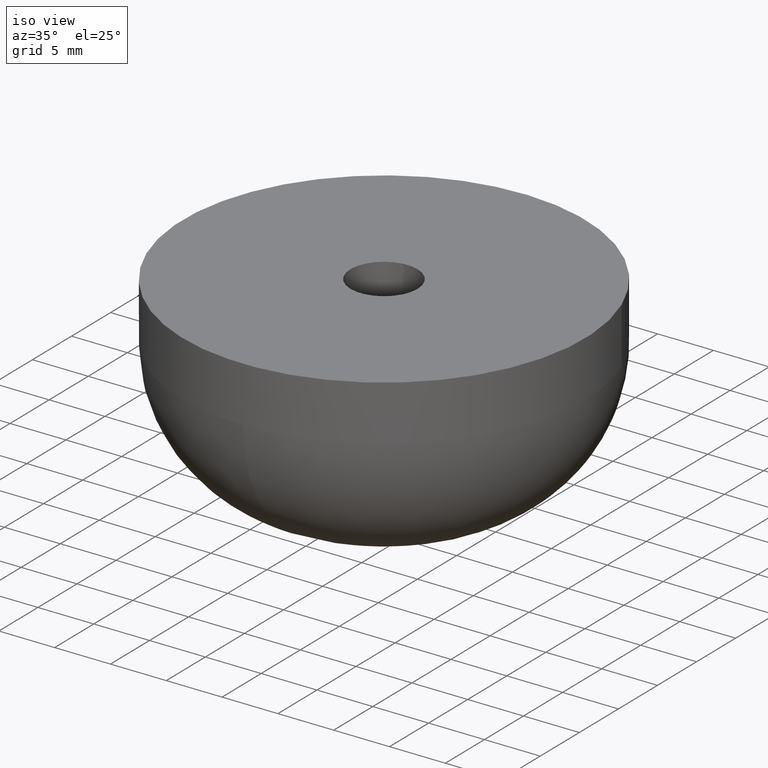
[diagram: clean part render]
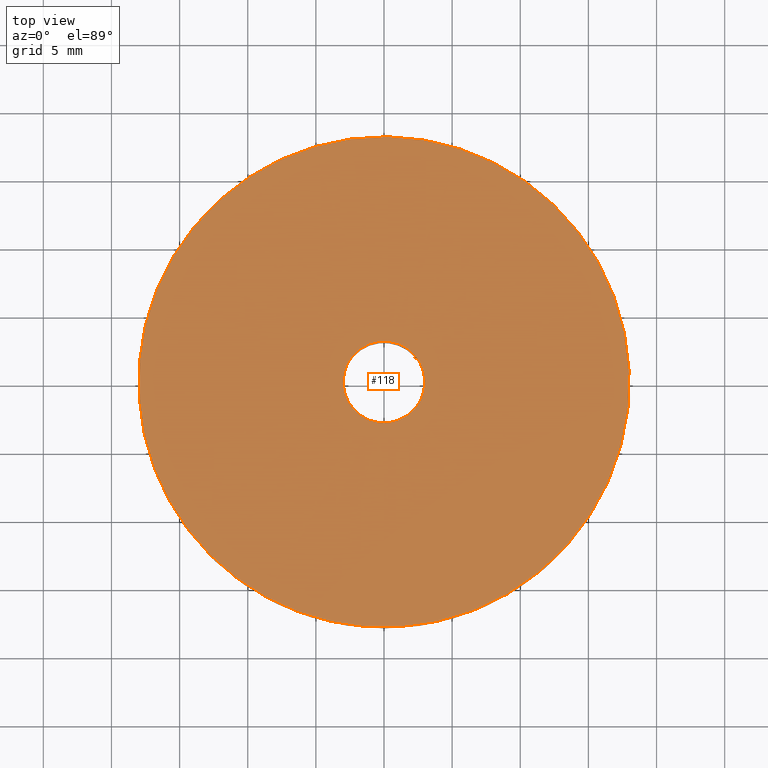
[diagram: tour spotlight — one face highlighted and labeled with its STEP entity id]
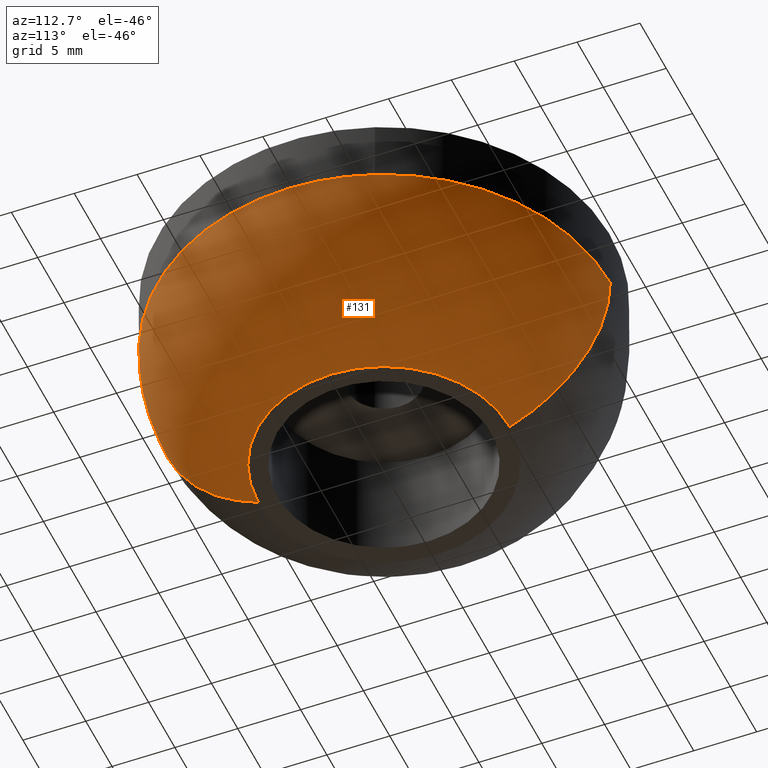
[diagram: tour spotlight — one face highlighted and labeled with its STEP entity id]
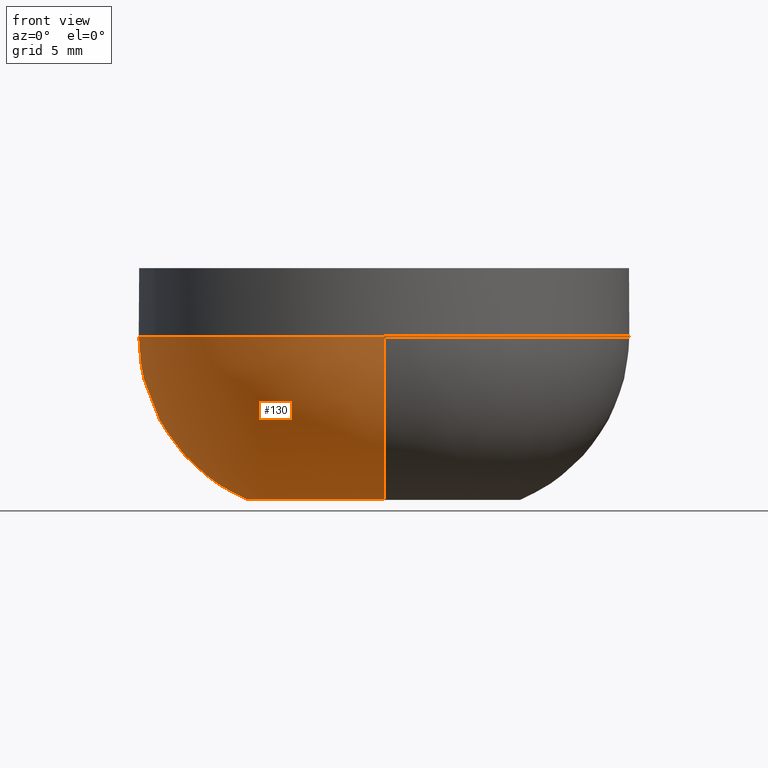
[diagram: tour spotlight — one face highlighted and labeled with its STEP entity id]
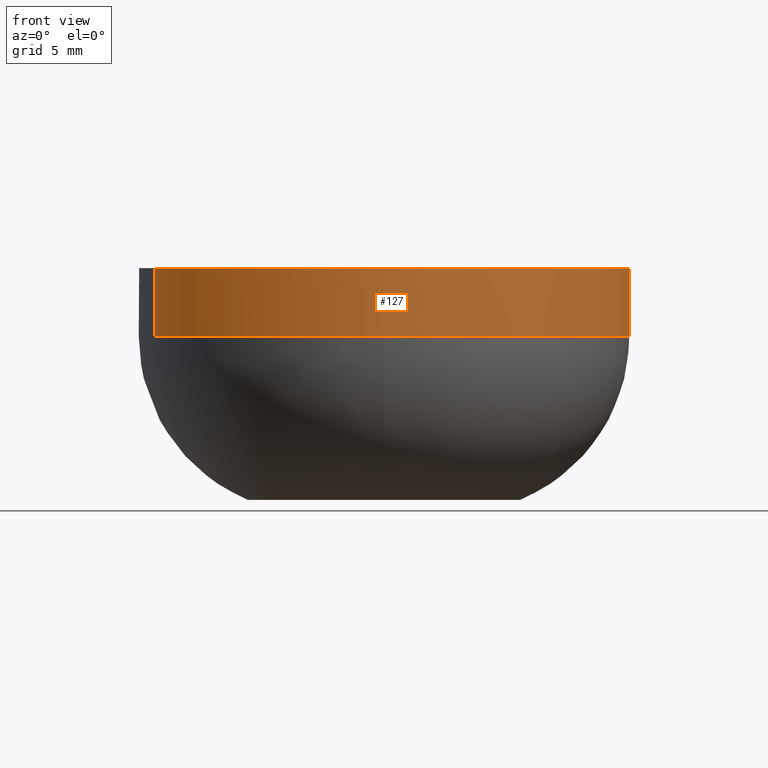
[diagram: tour spotlight — one face highlighted and labeled with its STEP entity id]
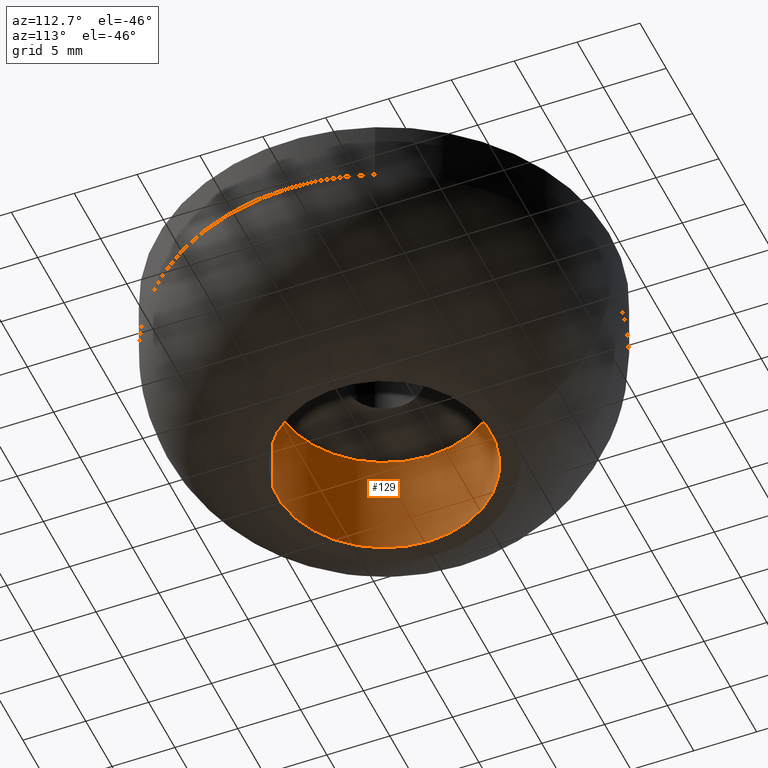
[diagram: tour spotlight — one face highlighted and labeled with its STEP entity id]
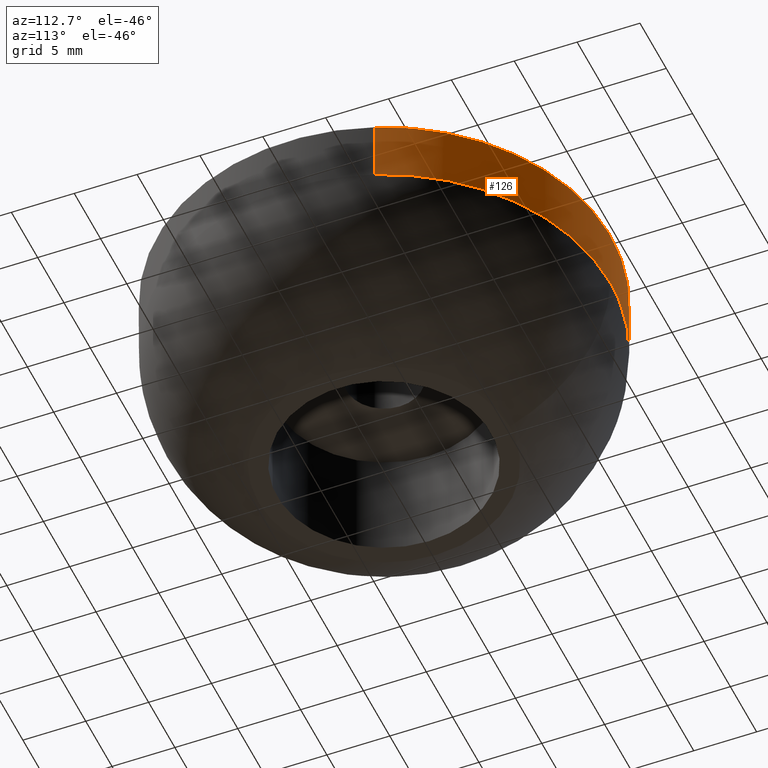
[diagram: tour spotlight — one face highlighted and labeled with its STEP entity id]
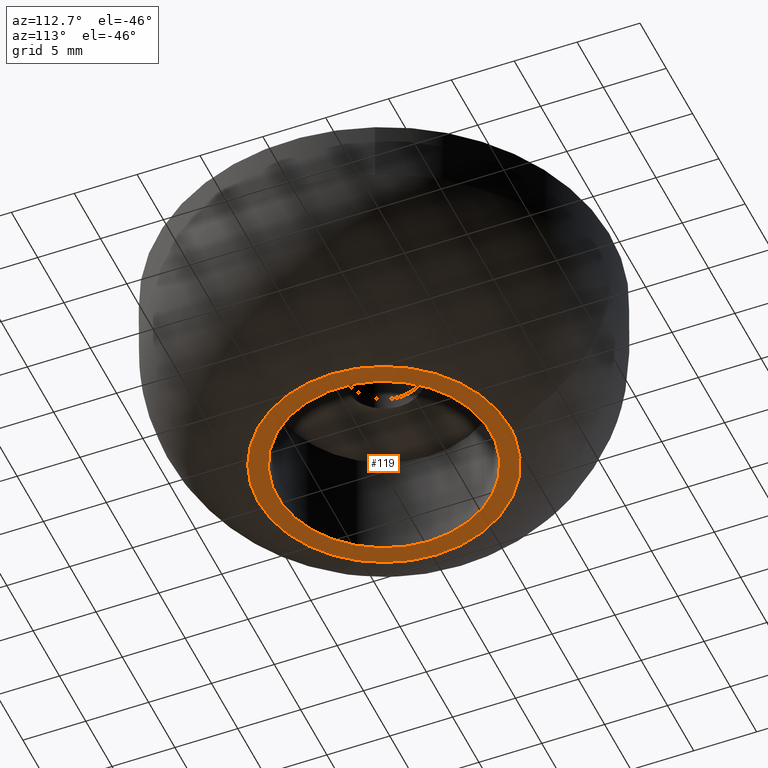
[diagram: tour spotlight — one face highlighted and labeled with its STEP entity id]
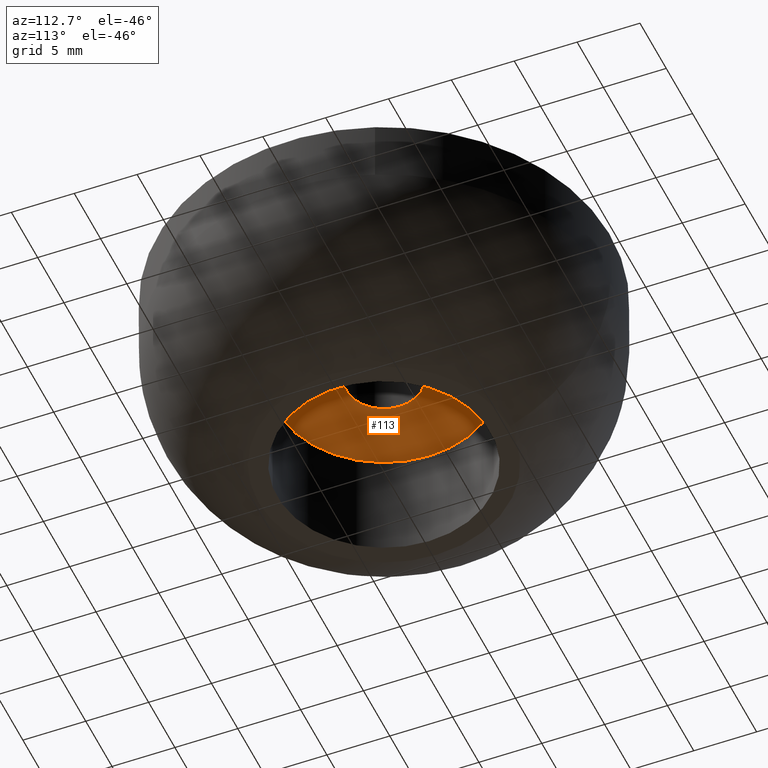
[diagram: tour spotlight — one face highlighted and labeled with its STEP entity id]
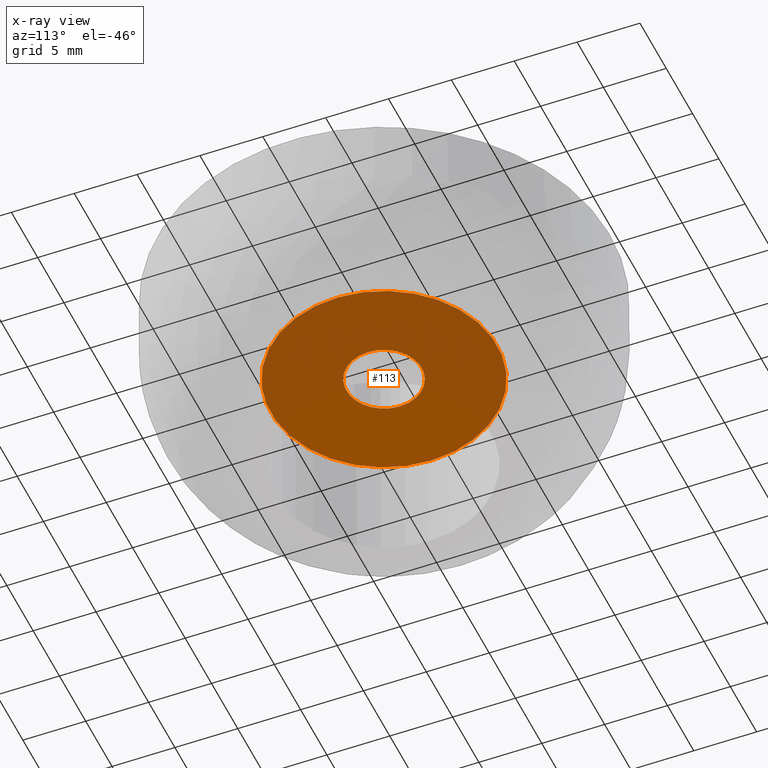
[diagram: x-ray of the same camera — body ghosted, this tour face saturated]
A machine part: a face-by-face anatomy tour. The part has 20 B-rep faces; the first image is the clean iso view, then the 8 largest visible faces are spotlighted one at a time (largest first), each with its STEP entity span.

Face 1 — top view, entity #118. In plain terms, the highlighted planar face has unit normal (0, 0, -1).
Definition (entity closure, byte-faithful):
#118=ADVANCED_FACE('',(#195,#196),#194,.F.);
#194=PLANE('',#373);
#195=FACE_OUTER_BOUND('',#374,.T.);
#196=FACE_BOUND('',#375,.T.);
#370=CARTESIAN_POINT('',(3.84413841361E+001,-2.54499782992E+001,1.70000000000E+001));
#371=DIRECTION('',(0.00000000000E+000,0.00000000000E+000,-1.00000000000E+000));
#372=DIRECTION('',(-1.00000000000E+000,0.00000000000E+000,0.00000000000E+000));
#373=AXIS2_PLACEMENT_3D('',#370,#371,#372);
#374=EDGE_LOOP('',(#518,#519,#520));
#375=EDGE_LOOP('',(#521,#522,#523));
#518=ORIENTED_EDGE('',*,*,#620,.F.);
#519=ORIENTED_EDGE('',*,*,#621,.F.);
#520=ORIENTED_EDGE('',*,*,#622,.F.);
#521=ORIENTED_EDGE('',*,*,#623,.T.);
#522=ORIENTED_EDGE('',*,*,#624,.T.);
#523=ORIENTED_EDGE('',*,*,#625,.T.);
#620=EDGE_CURVE('',#771,#772,#773,.T.);
#621=EDGE_CURVE('',#779,#771,#780,.T.);
#622=EDGE_CURVE('',#772,#779,#786,.T.);
#623=EDGE_CURVE('',#792,#793,#794,.T.);
#624=EDGE_CURVE('',#793,#800,#801,.T.);
#625=EDGE_CURVE('',#800,#792,#807,.T.);
#771=VERTEX_POINT('',#1130);
#772=VERTEX_POINT('',#1131);
#773=CIRCLE('',#1135,1.80000000000E+001);
#779=VERTEX_POINT('',#1136);
#780=CIRCLE('',#1140,1.80000000000E+001);
#786=CIRCLE('',#1144,1.80000000000E+001);
#792=VERTEX_POINT('',#1145);
#793=VERTEX_POINT('',#1146);
#794=CIRCLE('',#1150,3.00000000000E+000);
#800=VERTEX_POINT('',#1151);
#801=CIRCLE('',#1155,3.00000000000E+000);
#807=CIRCLE('',#1159,3.00000000000E+000);
#1130=CARTESIAN_POINT('',(1.68505878992E+001,6.32911427042E+000,1.70000000000E+001));
#1131=CARTESIAN_POINT('',(1.09886736164E+000,-1.79664267599E+001,1.70000000000E+001));
#1132=CARTESIAN_POINT('',(-3.08304493046E-011,-1.07913677994E-013,1.70000000000E+001));
#1133=DIRECTION('',(-1.22523998234E-014,-1.62035288634E-015,-1.00000000000E+000));
#1134=DIRECTION('',(6.10481867595E-002,-9.98134819998E-001,8.69343843868E-016));
#1135=AXIS2_PLACEMENT_3D('',#1132,#1133,#1134);
#1136=CARTESIAN_POINT('',(-1.68496273707E+001,-6.33167098538E+000,1.70000000000E+001));
#1137=CARTESIAN_POINT('',(-3.08304493046E-011,-1.07913677994E-013,1.70000000000E+001));
#1138=DIRECTION('',(-1.22523998234E-014,-1.62035288634E-015,-1.00000000000E+000));
#1139=DIRECTION('',(6.10481867595E-002,-9.98134819998E-001,8.69343843868E-016));
#1140=AXIS2_PLACEMENT_3D('',#1137,#1138,#1139);
#1141=CARTESIAN_POINT('',(-3.08304493046E-011,-1.07913677994E-013,1.70000000000E+001));
#1142=DIRECTION('',(-1.22523998234E-014,-1.62035288634E-015,-1.00000000000E+000));
#1143=DIRECTION('',(6.10481867595E-002,-9.98134819998E-001,8.69343843868E-016));
#1144=AXIS2_PLACEMENT_3D('',#1141,#1142,#1143);
#1145=CARTESIAN_POINT('',(-3.00000000000E+000,-7.77156117238E-016,1.70000000000E+001));
#1146=CARTESIAN_POINT('',(-3.54617583606E-001,2.97896733272E+000,1.70000000000E+001));
#1147=CARTESIAN_POINT('',(4.44089209850E-016,2.22044604925E-016,1.70000000000E+001));
#1148=DIRECTION('',(1.06736730200E-014,-1.11642127335E-015,-1.00000000000E+000));
#1149=DIRECTION('',(-1.00000000000E+000,2.77555756156E-017,-1.06736730200E-014));
#1150=AXIS2_PLACEMENT_3D('',#1147,#1148,#1149);
#1151=CARTESIAN_POINT('',(3.54101614557E-001,-2.97902870858E+000,1.70000000000E+001));
#1152=CARTESIAN_POINT('',(4.44089209850E-016,2.22044604925E-016,1.70000000000E+001));
#1153=DIRECTION('',(1.06736730200E-014,-1.11642127335E-015,-1.00000000000E+000));
#1154=DIRECTION('',(-1.00000000000E+000,2.77555756156E-017,-1.06736730200E-014));
#1155=AXIS2_PLACEMENT_3D('',#1152,#1153,#1154);
#1156=CARTESIAN_POINT('',(4.44089209850E-016,2.22044604925E-016,1.70000000000E+001));
#1157=DIRECTION('',(1.06736730200E-014,-1.11642127335E-015,-1.00000000000E+000));
#1158=DIRECTION('',(-1.00000000000E+000,2.77555756156E-017,-1.06736730200E-014));
#1159=AXIS2_PLACEMENT_3D('',#1156,#1157,#1158);

Face 2 — auxiliary view, entity #131. In plain terms, the highlighted face is a freeform B-spline surface patch.
Definition (entity closure, byte-faithful):
#131=ADVANCED_FACE('',(#329),#328,.T.);
#328=( BOUNDED_SURFACE() B_SPLINE_SURFACE( 2,2,((#460,#461,#462,#463,#464),(#465,#466,#467,#468,#469),(#470,#471,#472,#473,#474),(#475,#476,#477,#478,#479),(#480,#481,#482,#483,#484)), .UNSPECIFIED.,.F.,.F.,.F.) B_SPLINE_SURFACE_WITH_KNOTS((3,2,3),(3,2,3),(-1.22287522386E-008,9.82793717133E-001,1.96558744649E+000),(3.14159265359E+000,4.71238898038E+000,6.28318530718E+000), .UNSPECIFIED. ) GEOMETRIC_REPRESENTATION_ITEM() RATIONAL_B_SPLINE_SURFACE(((1.00000000000E+000,7.07106781187E-001,1.00000000000E+000,7.07106781187E-001,1.00000000000E+000),(8.81674597325E-001,6.23438086569E-001,8.81674597325E-001,6.23438086569E-001,8.81674597325E-001),(1.00000000000E+000,7.07106781187E-001,1.00000000000E+000,7.07106781187E-001,1.00000000000E+000),(8.81674597325E-001,6.23438086569E-001,8.81674597325E-001,6.23438086569E-001,8.81674597325E-001),(1.00000000000E+000,7.07106781187E-001,1.00000000000E+000,7.07106781187E-001,1.00000000000E+000))) REPRESENTATION_ITEM('') SURFACE() );
#329=FACE_OUTER_BOUND('',#485,.T.);
#460=CARTESIAN_POINT('',(-3.56348878234E-014,-1.80000000000E+001,1.20000001590E+001));
#461=CARTESIAN_POINT('',(1.80000000000E+001,-1.80000000000E+001,1.20000001590E+001));
#462=CARTESIAN_POINT('',(1.80000000000E+001,-8.18028468153E-015,1.20000001590E+001));
#463=CARTESIAN_POINT('',(1.80000000000E+001,1.80000000000E+001,1.20000001590E+001));
#464=CARTESIAN_POINT('',(-3.56347422202E-014,1.80000000000E+001,1.20000001590E+001));
#465=CARTESIAN_POINT('',(-3.24470181224E-014,-1.80000000851E+001,5.04261124750E+000));
#466=CARTESIAN_POINT('',(1.80000000851E+001,-1.80000000851E+001,5.04261124750E+000));
#467=CARTESIAN_POINT('',(1.80000000851E+001,-2.32341581283E-014,5.04261124750E+000));
#468=CARTESIAN_POINT('',(1.80000000851E+001,1.80000000851E+001,5.04261124750E+000));
#469=CARTESIAN_POINT('',(-3.24468725192E-014,1.80000000851E+001,5.04261124750E+000));
#470=CARTESIAN_POINT('',(-3.06786827441E-014,-1.22111026171E+001,1.18334621770E+000));
#471=CARTESIAN_POINT('',(1.22111026171E+001,-1.22111026171E+001,1.18334621770E+000));
#472=CARTESIAN_POINT('',(1.22111026171E+001,-3.15845213463E-014,1.18334621770E+000));
#473=CARTESIAN_POINT('',(1.22111026171E+001,1.22111026171E+001,1.18334621770E+000));
#474=CARTESIAN_POINT('',(-3.06785839677E-014,1.22111026171E+001,1.18334621770E+000));
#475=CARTESIAN_POINT('',(-2.89103473658E-014,-6.42220514905E+000,-2.67591881210E+000));
#476=CARTESIAN_POINT('',(6.42220514905E+000,-6.42220514905E+000,-2.67591881210E+000));
#477=CARTESIAN_POINT('',(6.42220514905E+000,-3.99348845644E-014,-2.67591881210E+000));
#478=CARTESIAN_POINT('',(6.42220514905E+000,6.42220514905E+000,-2.67591881210E+000));
#479=CARTESIAN_POINT('',(-2.89102954162E-014,6.42220514905E+000,-2.67591881210E+000));
#480=CARTESIAN_POINT('',(-3.01364251221E-014,-3.30323493647E-014,1.77635683940E-015));
#481=CARTESIAN_POINT('',(-3.12489830213E-014,-3.30323493647E-014,1.77635683940E-015));
#482=CARTESIAN_POINT('',(-3.12489830213E-014,-3.41449072639E-014,1.77635683940E-015));
#483=CARTESIAN_POINT('',(-3.12489830213E-014,-3.52574651631E-014,1.77635683940E-015));
#484=CARTESIAN_POINT('',(-3.01364251221E-014,-3.52574651631E-014,1.77635683940E-015));
#485=EDGE_LOOP('',(#597,#598,#599,#600,#601,#602,#603));
#597=ORIENTED_EDGE('',*,*,#629,.F.);
#598=ORIENTED_EDGE('',*,*,#628,.F.);
#599=ORIENTED_EDGE('',*,*,#661,.F.);
#600=ORIENTED_EDGE('',*,*,#651,.T.);
#601=ORIENTED_EDGE('',*,*,#658,.T.);
#602=ORIENTED_EDGE('',*,*,#657,.T.);
#603=ORIENTED_EDGE('',*,*,#662,.T.);
#628=EDGE_CURVE('',#821,#828,#829,.T.);
#629=EDGE_CURVE('',#828,#835,#836,.T.);
#651=EDGE_CURVE('',#984,#977,#985,.T.);
#657=EDGE_CURVE('',#1025,#1018,#1026,.T.);
#658=EDGE_CURVE('',#977,#1025,#1032,.T.);
#661=EDGE_CURVE('',#984,#821,#1050,.T.);
#662=EDGE_CURVE('',#1018,#835,#1056,.T.);
#821=VERTEX_POINT('',#1166);
#828=VERTEX_POINT('',#1171);
#829=CIRCLE('',#1175,9.99997992642E+000);
#835=VERTEX_POINT('',#1176);
#836=CIRCLE('',#1180,1.00000012137E+001);
#977=VERTEX_POINT('',#1268);
#984=VERTEX_POINT('',#1271);
#985=CIRCLE('',#1275,1.80000000000E+001);
#1018=VERTEX_POINT('',#1293);
#1025=VERTEX_POINT('',#1298);
#1026=CIRCLE('',#1302,1.80000000000E+001);
#1032=CIRCLE('',#1306,1.80000000000E+001);
#1050=(BOUNDED_CURVE() B_SPLINE_CURVE(2,(#1311,#1312,#1313,#1314,#1315),.UNSPECIFIED.,.F.,.F.) B_SPLINE_CURVE_WITH_KNOTS((3,2,3),(2.41701554262E-009,9.82793717133E-001,1.17984738879E+000),.UNSPECIFIED.) CURVE() GEOMETRIC_REPRESENTATION_ITEM() RATIONAL_B_SPLINE_CURVE((1.00000000000E+000,8.81674597325E-001,1.00000000000E+000,9.76275331892E-001,9.62064426072E-001)) REPRESENTATION_ITEM('') );
#1056=(BOUNDED_CURVE() B_SPLINE_CURVE(2,(#1316,#1317,#1318,#1319,#1320),.UNSPECIFIED.,.F.,.F.) B_SPLINE_CURVE_WITH_KNOTS((3,2,3),(-1.22287522386E-008,9.82793717133E-001,1.17984546510E+000),.UNSPECIFIED.) CURVE() GEOMETRIC_REPRESENTATION_ITEM() RATIONAL_B_SPLINE_CURVE((1.00000000000E+000,8.81674597325E-001,1.00000000000E+000,9.76275563499E-001,9.62064703535E-001)) REPRESENTATION_ITEM('') );
#1166=CARTESIAN_POINT('',(3.29268690849E-012,9.99997812025E+000,-9.52568824766E-006));
#1171=CARTESIAN_POINT('',(1.00000000109E+001,0.00000000000E+000,4.53433600000E-009));
#1172=CARTESIAN_POINT('',(2.00844591030E-005,-1.80615795298E-006,-5.03659162712E-006));
#1173=DIRECTION('',(5.04113688149E-007,-4.48909550692E-007,-1.00000000000E+000));
#1174=DIRECTION('',(1.15465104828E-001,-9.93311537015E-001,5.04114575626E-007));
#1175=AXIS2_PLACEMENT_3D('',#1172,#1173,#1174);
#1176=CARTESIAN_POINT('',(-1.35901863624E-006,-1.00000000109E+001,5.05699075829E-007));
#1177=CARTESIAN_POINT('',(-1.20279468518E-006,1.20279477056E-006,5.05699068000E-007));
#1178=DIRECTION('',(-5.01164671175E-008,2.92446514784E-026,-1.00000000000E+000));
#1179=DIRECTION('',(-1.00000000000E+000,1.20279462458E-007,5.01164671175E-008));
#1180=AXIS2_PLACEMENT_3D('',#1177,#1178,#1179);
#1268=CARTESIAN_POINT('',(1.68505834818E+001,6.32912603140E+000,1.20000001550E+001));
#1271=CARTESIAN_POINT('',(4.42921380550E-007,1.80000000000E+001,1.20000000100E+001));
#1272=CARTESIAN_POINT('',(1.82964754458E-013,8.34887714518E-014,1.19999999848E+001));
#1273=DIRECTION('',(9.57291991765E-009,1.39695416727E-009,-1.00000000000E+000));
#1274=DIRECTION('',(1.15464112661E-001,-9.93311652347E-001,-2.82282148273E-010));
#1275=AXIS2_PLACEMENT_3D('',#1272,#1273,#1274);
#1293=CARTESIAN_POINT('',(-9.83834809237E-007,-1.80000000000E+001,1.20000000000E+001));
#1298=CARTESIAN_POINT('',(1.80000000000E+001,0.00000000000E+000,1.20000000000E+001));
#1299=CARTESIAN_POINT('',(-3.17470494338E-011,-1.23900889548E-013,1.20000000000E+001));
#1300=DIRECTION('',(4.93111622183E-014,-3.05271626761E-014,-1.00000000000E+000));
#1301=DIRECTION('',(9.36143743636E-001,3.51617535471E-001,3.54284502970E-014));
#1302=AXIS2_PLACEMENT_3D('',#1299,#1300,#1301);
#1303=CARTESIAN_POINT('',(1.82964754458E-013,8.34887714518E-014,1.19999999848E+001));
#1304=DIRECTION('',(9.57291991765E-009,1.39695416727E-009,-1.00000000000E+000));
#1305=DIRECTION('',(1.15464112661E-001,-9.93311652347E-001,-2.82282148273E-010));
#1306=AXIS2_PLACEMENT_3D('',#1303,#1304,#1305);
#1311=CARTESIAN_POINT('',(-3.56347422202E-014,1.80000000000E+001,1.20000001590E+001));
#1312=CARTESIAN_POINT('',(-3.24468725192E-014,1.80000000851E+001,5.04261124750E+000));
#1313=CARTESIAN_POINT('',(-3.06785839677E-014,1.22111026171E+001,1.18334621770E+000));
#1314=CARTESIAN_POINT('',(-3.03583913593E-014,1.11628787974E+001,4.84530328682E-001));
#1315=CARTESIAN_POINT('',(-3.01363804743E-014,9.99997798695E+000,-9.17208033246E-006));
#1316=CARTESIAN_POINT('',(-3.56348878234E-014,-1.80000000000E+001,1.20000001590E+001));
#1317=CARTESIAN_POINT('',(-3.24470181224E-014,-1.80000000851E+001,5.04261124750E+000));
#1318=CARTESIAN_POINT('',(-3.06786827441E-014,-1.22111026171E+001,1.18334621770E+000));
#1319=CARTESIAN_POINT('',(-3.03584848585E-014,-1.11628892792E+001,4.84537316509E-001));
#1320=CARTESIAN_POINT('',(-3.01364657636E-014,-1.00000010275E+001,4.28115125646E-007));

Face 3 — front view, entity #130. In plain terms, the highlighted face is a freeform B-spline surface patch.
Definition (entity closure, byte-faithful):
#130=ADVANCED_FACE('',(#319),#318,.T.);
#318=( BOUNDED_SURFACE() B_SPLINE_SURFACE( 2,2,((#434,#435,#436,#437,#438),(#439,#440,#441,#442,#443),(#444,#445,#446,#447,#448),(#449,#450,#451,#452,#453),(#454,#455,#456,#457,#458)), .UNSPECIFIED.,.F.,.F.,.F.) B_SPLINE_SURFACE_WITH_KNOTS((3,2,3),(3,2,3),(-1.22287522386E-008,9.82793717133E-001,1.96558744649E+000),(0.00000000000E+000,1.57079632679E+000,3.14159265359E+000), .UNSPECIFIED. ) GEOMETRIC_REPRESENTATION_ITEM() RATIONAL_B_SPLINE_SURFACE(((1.00000000000E+000,7.07106781187E-001,1.00000000000E+000,7.07106781187E-001,1.00000000000E+000),(8.81674597325E-001,6.23438086569E-001,8.81674597325E-001,6.23438086569E-001,8.81674597325E-001),(1.00000000000E+000,7.07106781187E-001,1.00000000000E+000,7.07106781187E-001,1.00000000000E+000),(8.81674597325E-001,6.23438086569E-001,8.81674597325E-001,6.23438086569E-001,8.81674597325E-001),(1.00000000000E+000,7.07106781187E-001,1.00000000000E+000,7.07106781187E-001,1.00000000000E+000))) REPRESENTATION_ITEM('') SURFACE() );
#319=FACE_OUTER_BOUND('',#459,.T.);
#434=CARTESIAN_POINT('',(-3.56347422202E-014,1.80000000000E+001,1.20000001590E+001));
#435=CARTESIAN_POINT('',(-1.80000000000E+001,1.80000000000E+001,1.20000001590E+001));
#436=CARTESIAN_POINT('',(-1.80000000000E+001,-8.18013907836E-015,1.20000001590E+001));
#437=CARTESIAN_POINT('',(-1.80000000000E+001,-1.80000000000E+001,1.20000001590E+001));
#438=CARTESIAN_POINT('',(-3.56348878234E-014,-1.80000000000E+001,1.20000001590E+001));
#439=CARTESIAN_POINT('',(-3.24468725192E-014,1.80000000851E+001,5.04261124750E+000));
#440=CARTESIAN_POINT('',(-1.80000000851E+001,1.80000000851E+001,5.04261124750E+000));
#441=CARTESIAN_POINT('',(-1.80000000851E+001,-2.32340125251E-014,5.04261124750E+000));
#442=CARTESIAN_POINT('',(-1.80000000851E+001,-1.80000000851E+001,5.04261124750E+000));
#443=CARTESIAN_POINT('',(-3.24470181224E-014,-1.80000000851E+001,5.04261124750E+000));
#444=CARTESIAN_POINT('',(-3.06785839677E-014,1.22111026171E+001,1.18334621770E+000));
#445=CARTESIAN_POINT('',(-1.22111026171E+001,1.22111026171E+001,1.18334621770E+000));
#446=CARTESIAN_POINT('',(-1.22111026171E+001,-3.15844225699E-014,1.18334621770E+000));
#447=CARTESIAN_POINT('',(-1.22111026171E+001,-1.22111026171E+001,1.18334621770E+000));
#448=CARTESIAN_POINT('',(-3.06786827441E-014,-1.22111026171E+001,1.18334621770E+000));
#449=CARTESIAN_POINT('',(-2.89102954162E-014,6.42220514905E+000,-2.67591881210E+000));
#450=CARTESIAN_POINT('',(-6.42220514905E+000,6.42220514905E+000,-2.67591881210E+000));
#451=CARTESIAN_POINT('',(-6.42220514905E+000,-3.99348326148E-014,-2.67591881210E+000));
#452=CARTESIAN_POINT('',(-6.42220514905E+000,-6.42220514905E+000,-2.67591881210E+000));
#453=CARTESIAN_POINT('',(-2.89103473658E-014,-6.42220514905E+000,-2.67591881210E+000));
#454=CARTESIAN_POINT('',(-3.01364251221E-014,-3.52574651631E-014,1.77635683940E-015));
#455=CARTESIAN_POINT('',(-2.90238672229E-014,-3.52574651631E-014,1.77635683940E-015));
#456=CARTESIAN_POINT('',(-2.90238672229E-014,-3.41449072639E-014,1.77635683940E-015));
#457=CARTESIAN_POINT('',(-2.90238672229E-014,-3.30323493647E-014,1.77635683940E-015));
#458=CARTESIAN_POINT('',(-3.01364251221E-014,-3.30323493647E-014,1.77635683940E-015));
#459=EDGE_LOOP('',(#588,#589,#590,#591,#592,#593,#594,#595,#596));
#588=ORIENTED_EDGE('',*,*,#656,.T.);
#589=ORIENTED_EDGE('',*,*,#654,.T.);
#590=ORIENTED_EDGE('',*,*,#653,.T.);
#591=ORIENTED_EDGE('',*,*,#652,.T.);
#592=ORIENTED_EDGE('',*,*,#661,.T.);
#593=ORIENTED_EDGE('',*,*,#627,.F.);
#594=ORIENTED_EDGE('',*,*,#626,.F.);
#595=ORIENTED_EDGE('',*,*,#630,.F.);
#596=ORIENTED_EDGE('',*,*,#662,.F.);
#626=EDGE_CURVE('',#813,#814,#815,.T.);
#627=EDGE_CURVE('',#814,#821,#822,.T.);
#630=EDGE_CURVE('',#835,#813,#842,.T.);
#652=EDGE_CURVE('',#991,#984,#992,.T.);
#653=EDGE_CURVE('',#998,#991,#999,.T.);
#654=EDGE_CURVE('',#1005,#998,#1006,.T.);
#656=EDGE_CURVE('',#1018,#1005,#1019,.T.);
#661=EDGE_CURVE('',#984,#821,#1050,.T.);
#662=EDGE_CURVE('',#1018,#835,#1056,.T.);
#813=VERTEX_POINT('',#1160);
#814=VERTEX_POINT('',#1161);
#815=CIRCLE('',#1165,9.99998088436E+000);
#821=VERTEX_POINT('',#1166);
#822=CIRCLE('',#1170,9.99997992642E+000);
#835=VERTEX_POINT('',#1176);
#842=CIRCLE('',#1184,1.00000012137E+001);
#984=VERTEX_POINT('',#1271);
#991=VERTEX_POINT('',#1276);
#992=CIRCLE('',#1280,1.80000000000E+001);
#998=VERTEX_POINT('',#1281);
#999=CIRCLE('',#1285,1.80000000000E+001);
#1005=VERTEX_POINT('',#1286);
#1006=CIRCLE('',#1290,1.80000000000E+001);
#1018=VERTEX_POINT('',#1293);
#1019=CIRCLE('',#1297,1.80000000000E+001);
#1050=(BOUNDED_CURVE() B_SPLINE_CURVE(2,(#1311,#1312,#1313,#1314,#1315),.UNSPECIFIED.,.F.,.F.) B_SPLINE_CURVE_WITH_KNOTS((3,2,3),(2.41701554262E-009,9.82793717133E-001,1.17984738879E+000),.UNSPECIFIED.) CURVE() GEOMETRIC_REPRESENTATION_ITEM() RATIONAL_B_SPLINE_CURVE((1.00000000000E+000,8.81674597325E-001,1.00000000000E+000,9.76275331892E-001,9.62064426072E-001)) REPRESENTATION_ITEM('') );
#1056=(BOUNDED_CURVE() B_SPLINE_CURVE(2,(#1316,#1317,#1318,#1319,#1320),.UNSPECIFIED.,.F.,.F.) B_SPLINE_CURVE_WITH_KNOTS((3,2,3),(-1.22287522386E-008,9.82793717133E-001,1.17984546510E+000),.UNSPECIFIED.) CURVE() GEOMETRIC_REPRESENTATION_ITEM() RATIONAL_B_SPLINE_CURVE((1.00000000000E+000,8.81674597325E-001,1.00000000000E+000,9.76275563499E-001,9.62064703535E-001)) REPRESENTATION_ITEM('') );
#1160=CARTESIAN_POINT('',(-1.00000024165E+001,0.00000000000E+000,1.00686380000E-006));
#1161=CARTESIAN_POINT('',(-1.15462864603E+000,9.93309362468E+000,-1.00777272640E-005));
#1162=CARTESIAN_POINT('',(-2.15321159871E-005,-7.60807303557E-006,-4.53542243523E-006));
#1163=DIRECTION('',(-5.54230156485E-007,-6.22385976477E-007,-1.00000000000E+000));
#1164=DIRECTION('',(1.00000000000E+000,-7.60808757892E-007,-5.54229682969E-007));
#1165=AXIS2_PLACEMENT_3D('',#1162,#1163,#1164);
#1166=CARTESIAN_POINT('',(3.29268690849E-012,9.99997812025E+000,-9.52568824766E-006));
#1167=CARTESIAN_POINT('',(2.00844591030E-005,-1.80615795298E-006,-5.03659162712E-006));
#1168=DIRECTION('',(5.04113688149E-007,-4.48909550692E-007,-1.00000000000E+000));
#1169=DIRECTION('',(1.15465104828E-001,-9.93311537015E-001,5.04114575626E-007));
#1170=AXIS2_PLACEMENT_3D('',#1167,#1168,#1169);
#1176=CARTESIAN_POINT('',(-1.35901863624E-006,-1.00000000109E+001,5.05699075829E-007));
#1181=CARTESIAN_POINT('',(-1.20279468518E-006,1.20279477056E-006,5.05699068000E-007));
#1182=DIRECTION('',(-5.01164671175E-008,2.92446514784E-026,-1.00000000000E+000));
#1183=DIRECTION('',(-1.00000000000E+000,1.20279462458E-007,5.01164671175E-008));
#1184=AXIS2_PLACEMENT_3D('',#1181,#1182,#1183);
#1271=CARTESIAN_POINT('',(4.42921380550E-007,1.80000000000E+001,1.20000000100E+001));
#1276=CARTESIAN_POINT('',(-2.07835402790E+000,1.78796097422E+001,1.19999999899E+001));
#1277=CARTESIAN_POINT('',(1.82964754458E-013,8.34887714518E-014,1.19999999848E+001));
#1278=DIRECTION('',(9.57291991765E-009,1.39695416727E-009,-1.00000000000E+000));
#1279=DIRECTION('',(1.15464112661E-001,-9.93311652347E-001,-2.82282148273E-010));
#1280=AXIS2_PLACEMENT_3D('',#1277,#1278,#1279);
#1281=CARTESIAN_POINT('',(-1.80000000000E+001,0.00000000000E+000,1.20000000000E+001));
#1282=CARTESIAN_POINT('',(-1.75859327101E-013,3.55271367880E-014,1.19999999886E+001));
#1283=DIRECTION('',(-6.33278121301E-010,3.49607254130E-014,-1.00000000000E+000));
#1284=DIRECTION('',(1.00000000000E+000,1.97372982156E-015,-6.33278121301E-010));
#1285=AXIS2_PLACEMENT_3D('',#1282,#1283,#1284);
#1286=CARTESIAN_POINT('',(-1.68495535906E+001,-6.33186732323E+000,1.20000000000E+001));
#1287=CARTESIAN_POINT('',(-3.17470494338E-011,-1.23900889548E-013,1.20000000000E+001));
#1288=DIRECTION('',(4.93111622183E-014,-3.05271626761E-014,-1.00000000000E+000));
#1289=DIRECTION('',(9.36143743636E-001,3.51617535471E-001,3.54284502970E-014));
#1290=AXIS2_PLACEMENT_3D('',#1287,#1288,#1289);
#1293=CARTESIAN_POINT('',(-9.83834809237E-007,-1.80000000000E+001,1.20000000000E+001));
#1294=CARTESIAN_POINT('',(-3.17470494338E-011,-1.23900889548E-013,1.20000000000E+001));
#1295=DIRECTION('',(4.93111622183E-014,-3.05271626761E-014,-1.00000000000E+000));
#1296=DIRECTION('',(9.36143743636E-001,3.51617535471E-001,3.54284502970E-014));
#1297=AXIS2_PLACEMENT_3D('',#1294,#1295,#1296);
#1311=CARTESIAN_POINT('',(-3.56347422202E-014,1.80000000000E+001,1.20000001590E+001));
#1312=CARTESIAN_POINT('',(-3.24468725192E-014,1.80000000851E+001,5.04261124750E+000));
#1313=CARTESIAN_POINT('',(-3.06785839677E-014,1.22111026171E+001,1.18334621770E+000));
#1314=CARTESIAN_POINT('',(-3.03583913593E-014,1.11628787974E+001,4.84530328682E-001));
#1315=CARTESIAN_POINT('',(-3.01363804743E-014,9.99997798695E+000,-9.17208033246E-006));
#1316=CARTESIAN_POINT('',(-3.56348878234E-014,-1.80000000000E+001,1.20000001590E+001));
#1317=CARTESIAN_POINT('',(-3.24470181224E-014,-1.80000000851E+001,5.04261124750E+000));
#1318=CARTESIAN_POINT('',(-3.06786827441E-014,-1.22111026171E+001,1.18334621770E+000));
#1319=CARTESIAN_POINT('',(-3.03584848585E-014,-1.11628892792E+001,4.84537316509E-001));
#1320=CARTESIAN_POINT('',(-3.01364657636E-014,-1.00000010275E+001,4.28115125646E-007));

Face 4 — front view, entity #127. In plain terms, the highlighted cylindrical surface (partial cylindrical patch) has radius 18 mm, axis along (0, -0, 1).
Definition (entity closure, byte-faithful):
#127=ADVANCED_FACE('',(#289),#288,.T.);
#288=CYLINDRICAL_SURFACE('',#422,1.80000000000E+001);
#289=FACE_OUTER_BOUND('',#423,.T.);
#419=CARTESIAN_POINT('',(-7.77061529414E-015,-2.95836307898E-015,1.71250000003E+001));
#420=DIRECTION('',(4.23050622484E-016,-1.12632502482E-015,1.00000000000E+000));
#421=DIRECTION('',(9.36143578777E-001,3.51617974392E-001,-2.46519032882E-031));
#422=AXIS2_PLACEMENT_3D('',#419,#420,#421);
#423=EDGE_LOOP('',(#571,#572,#573,#574,#575,#576,#577));
#571=ORIENTED_EDGE('',*,*,#656,.F.);
#572=ORIENTED_EDGE('',*,*,#657,.F.);
#573=ORIENTED_EDGE('',*,*,#658,.F.);
#574=ORIENTED_EDGE('',*,*,#650,.T.);
#575=ORIENTED_EDGE('',*,*,#620,.T.);
#576=ORIENTED_EDGE('',*,*,#622,.T.);
#577=ORIENTED_EDGE('',*,*,#655,.F.);
#620=EDGE_CURVE('',#771,#772,#773,.T.);
#622=EDGE_CURVE('',#772,#779,#786,.T.);
#650=EDGE_CURVE('',#977,#771,#978,.T.);
#655=EDGE_CURVE('',#1005,#779,#1012,.T.);
#656=EDGE_CURVE('',#1018,#1005,#1019,.T.);
#657=EDGE_CURVE('',#1025,#1018,#1026,.T.);
#658=EDGE_CURVE('',#977,#1025,#1032,.T.);
#771=VERTEX_POINT('',#1130);
#772=VERTEX_POINT('',#1131);
#773=CIRCLE('',#1135,1.80000000000E+001);
#779=VERTEX_POINT('',#1136);
#786=CIRCLE('',#1144,1.80000000000E+001);
#977=VERTEX_POINT('',#1268);
#978=(BOUNDED_CURVE() B_SPLINE_CURVE(1,(#1269,#1270),.UNSPECIFIED.,.F.,.F.) B_SPLINE_CURVE_WITH_KNOTS((2,2),(8.33333581686E-002,9.16666666441E-001),.UNSPECIFIED.) CURVE() GEOMETRIC_REPRESENTATION_ITEM() RATIONAL_B_SPLINE_CURVE((1.00000000000E+000,1.00000000000E+000)) REPRESENTATION_ITEM('') );
#1005=VERTEX_POINT('',#1286);
#1012=(BOUNDED_CURVE() B_SPLINE_CURVE(1,(#1291,#1292),.UNSPECIFIED.,.F.,.F.) B_SPLINE_CURVE_WITH_KNOTS((2,2),(8.33333350139E-002,9.16666666667E-001),.UNSPECIFIED.) CURVE() GEOMETRIC_REPRESENTATION_ITEM() RATIONAL_B_SPLINE_CURVE((7.50000000000E-001,7.50000000000E-001)) REPRESENTATION_ITEM('') );
#1018=VERTEX_POINT('',#1293);
#1019=CIRCLE('',#1297,1.80000000000E+001);
#1025=VERTEX_POINT('',#1298);
#1026=CIRCLE('',#1302,1.80000000000E+001);
#1032=CIRCLE('',#1306,1.80000000000E+001);
#1130=CARTESIAN_POINT('',(1.68505878992E+001,6.32911427042E+000,1.70000000000E+001));
#1131=CARTESIAN_POINT('',(1.09886736164E+000,-1.79664267599E+001,1.70000000000E+001));
#1132=CARTESIAN_POINT('',(-3.08304493046E-011,-1.07913677994E-013,1.70000000000E+001));
#1133=DIRECTION('',(-1.22523998234E-014,-1.62035288634E-015,-1.00000000000E+000));
#1134=DIRECTION('',(6.10481867595E-002,-9.98134819998E-001,8.69343843868E-016));
#1135=AXIS2_PLACEMENT_3D('',#1132,#1133,#1134);
#1136=CARTESIAN_POINT('',(-1.68496273707E+001,-6.33167098538E+000,1.70000000000E+001));
#1141=CARTESIAN_POINT('',(-3.08304493046E-011,-1.07913677994E-013,1.70000000000E+001));
#1142=DIRECTION('',(-1.22523998234E-014,-1.62035288634E-015,-1.00000000000E+000));
#1143=DIRECTION('',(6.10481867595E-002,-9.98134819998E-001,8.69343843868E-016));
#1144=AXIS2_PLACEMENT_3D('',#1141,#1142,#1143);
#1268=CARTESIAN_POINT('',(1.68505834818E+001,6.32912603140E+000,1.20000001550E+001));
#1269=CARTESIAN_POINT('',(1.68505844180E+001,6.32912353905E+000,1.20000001389E+001));
#1270=CARTESIAN_POINT('',(1.68505844180E+001,6.32912353905E+000,1.69999999986E+001));
#1286=CARTESIAN_POINT('',(-1.68495535906E+001,-6.33186732323E+000,1.20000000000E+001));
#1291=CARTESIAN_POINT('',(-1.68505844180E+001,-6.32912353905E+000,1.20000000000E+001));
#1292=CARTESIAN_POINT('',(-1.68505844180E+001,-6.32912353905E+000,1.70000000000E+001));
#1293=CARTESIAN_POINT('',(-9.83834809237E-007,-1.80000000000E+001,1.20000000000E+001));
#1294=CARTESIAN_POINT('',(-3.17470494338E-011,-1.23900889548E-013,1.20000000000E+001));
#1295=DIRECTION('',(4.93111622183E-014,-3.05271626761E-014,-1.00000000000E+000));
#1296=DIRECTION('',(9.36143743636E-001,3.51617535471E-001,3.54284502970E-014));
#1297=AXIS2_PLACEMENT_3D('',#1294,#1295,#1296);
#1298=CARTESIAN_POINT('',(1.80000000000E+001,0.00000000000E+000,1.20000000000E+001));
#1299=CARTESIAN_POINT('',(-3.17470494338E-011,-1.23900889548E-013,1.20000000000E+001));
#1300=DIRECTION('',(4.93111622183E-014,-3.05271626761E-014,-1.00000000000E+000));
#1301=DIRECTION('',(9.36143743636E-001,3.51617535471E-001,3.54284502970E-014));
#1302=AXIS2_PLACEMENT_3D('',#1299,#1300,#1301);
#1303=CARTESIAN_POINT('',(1.82964754458E-013,8.34887714518E-014,1.19999999848E+001));
#1304=DIRECTION('',(9.57291991765E-009,1.39695416727E-009,-1.00000000000E+000));
#1305=DIRECTION('',(1.15464112661E-001,-9.93311652347E-001,-2.82282148273E-010));
#1306=AXIS2_PLACEMENT_3D('',#1303,#1304,#1305);

Face 5 — auxiliary view, entity #129. In plain terms, the highlighted cylindrical surface (partial cylindrical patch) has radius 8.5 mm, axis along (0, 0, 1).
Definition (entity closure, byte-faithful):
#129=ADVANCED_FACE('',(#309),#308,.F.);
#308=CYLINDRICAL_SURFACE('',#432,8.50000000000E+000);
#309=FACE_OUTER_BOUND('',#433,.T.);
#429=CARTESIAN_POINT('',(9.16005275077E-016,-5.09900740192E-017,9.22500000000E+000));
#430=DIRECTION('',(3.22903655469E-016,3.83819941594E-017,1.00000000000E+000));
#431=DIRECTION('',(1.18034234657E-001,-9.93009526364E-001,-5.54667823984E-032));
#432=AXIS2_PLACEMENT_3D('',#429,#430,#431);
#433=EDGE_LOOP('',(#582,#583,#584,#585,#586,#587));
#582=ORIENTED_EDGE('',*,*,#643,.F.);
#583=ORIENTED_EDGE('',*,*,#645,.F.);
#584=ORIENTED_EDGE('',*,*,#659,.F.);
#585=ORIENTED_EDGE('',*,*,#631,.T.);
#586=ORIENTED_EDGE('',*,*,#633,.T.);
#587=ORIENTED_EDGE('',*,*,#660,.T.);
#631=EDGE_CURVE('',#848,#849,#850,.T.);
#633=EDGE_CURVE('',#849,#856,#863,.T.);
#643=EDGE_CURVE('',#932,#933,#934,.T.);
#645=EDGE_CURVE('',#940,#932,#947,.T.);
#659=EDGE_CURVE('',#848,#940,#1038,.T.);
#660=EDGE_CURVE('',#856,#933,#1044,.T.);
#848=VERTEX_POINT('',#1185);
#849=VERTEX_POINT('',#1186);
#850=CIRCLE('',#1190,8.49999999999E+000);
#856=VERTEX_POINT('',#1191);
#863=CIRCLE('',#1199,8.49999999999E+000);
#932=VERTEX_POINT('',#1245);
#933=VERTEX_POINT('',#1246);
#934=CIRCLE('',#1250,8.49999999999E+000);
#940=VERTEX_POINT('',#1251);
#947=CIRCLE('',#1259,8.49999999999E+000);
#1038=(BOUNDED_CURVE() B_SPLINE_CURVE(1,(#1307,#1308),.UNSPECIFIED.,.F.,.F.) B_SPLINE_CURVE_WITH_KNOTS((2,2),(8.33333343261E-002,9.16666664274E-001),.UNSPECIFIED.) CURVE() GEOMETRIC_REPRESENTATION_ITEM() RATIONAL_B_SPLINE_CURVE((1.00000000000E+000,1.00000000000E+000)) REPRESENTATION_ITEM('') );
#1044=(BOUNDED_CURVE() B_SPLINE_CURVE(1,(#1309,#1310),.UNSPECIFIED.,.F.,.F.) B_SPLINE_CURVE_WITH_KNOTS((2,2),(8.33333333334E-002,9.16666666667E-001),.UNSPECIFIED.) CURVE() GEOMETRIC_REPRESENTATION_ITEM() RATIONAL_B_SPLINE_CURVE((7.50000000000E-001,7.50000000000E-001)) REPRESENTATION_ITEM('') );
#1185=CARTESIAN_POINT('',(1.00328790791E+000,-8.44058134097E+000,-1.05262944950E-013));
#1186=CARTESIAN_POINT('',(-8.49999999998E+000,-2.88657986403E-015,-9.58522027891E-013));
#1187=CARTESIAN_POINT('',(1.12780895734E-011,5.12923037377E-012,-7.89534009668E-014));
#1188=DIRECTION('',(1.03478661991E-013,1.54169990227E-014,-1.00000000000E+000));
#1189=DIRECTION('',(-1.00000000000E+000,-6.03420091672E-013,-1.03478661991E-013));
#1190=AXIS2_PLACEMENT_3D('',#1187,#1188,#1189);
#1191=CARTESIAN_POINT('',(-1.00474982022E+000,8.44040744269E+000,-5.27978147050E-014));
#1196=CARTESIAN_POINT('',(1.12780895734E-011,5.12923037377E-012,-7.89534009668E-014));
#1197=DIRECTION('',(1.03478661991E-013,1.54169990227E-014,-1.00000000000E+000));
#1198=DIRECTION('',(-1.00000000000E+000,-6.03420091672E-013,-1.03478661991E-013));
#1199=AXIS2_PLACEMENT_3D('',#1196,#1197,#1198);
#1245=CARTESIAN_POINT('',(-8.49999999998E+000,-3.03931684917E-015,9.00000000000E+000));
#1246=CARTESIAN_POINT('',(-1.00474982022E+000,8.44040744269E+000,9.00000000000E+000));
#1247=CARTESIAN_POINT('',(1.06021857960E-011,-1.64490643328E-012,9.00000000000E+000));
#1248=DIRECTION('',(4.28953110501E-029,-2.21660111814E-016,-1.00000000000E+000));
#1249=DIRECTION('',(-1.00000000000E+000,1.93727387073E-013,-8.58369453302E-029));
#1250=AXIS2_PLACEMENT_3D('',#1247,#1248,#1249);
#1251=CARTESIAN_POINT('',(1.00328790791E+000,-8.44058134098E+000,9.00000000000E+000));
#1256=CARTESIAN_POINT('',(1.06021857960E-011,-1.64490643328E-012,9.00000000000E+000));
#1257=DIRECTION('',(4.28953110501E-029,-2.21660111814E-016,-1.00000000000E+000));
#1258=DIRECTION('',(-1.00000000000E+000,1.93727387073E-013,-8.58369453302E-029));
#1259=AXIS2_PLACEMENT_3D('',#1256,#1257,#1258);
#1307=CARTESIAN_POINT('',(1.00329099458E+000,-8.44058097409E+000,1.07204476407E-008));
#1308=CARTESIAN_POINT('',(1.00329099458E+000,-8.44058097409E+000,8.99999997416E+000));
#1309=CARTESIAN_POINT('',(-1.00329099458E+000,8.44058097409E+000,-3.55123338143E-013));
#1310=CARTESIAN_POINT('',(-1.00329099458E+000,8.44058097409E+000,9.00000000000E+000));

Face 6 — auxiliary view, entity #126. In plain terms, the highlighted cylindrical surface (partial cylindrical patch) has radius 18 mm, axis along (0, -0, 1).
Definition (entity closure, byte-faithful):
#126=ADVANCED_FACE('',(#279),#278,.T.);
#278=CYLINDRICAL_SURFACE('',#417,1.80000000000E+001);
#279=FACE_OUTER_BOUND('',#418,.T.);
#414=CARTESIAN_POINT('',(-7.77061529414E-015,-2.95836307898E-015,1.71250000003E+001));
#415=DIRECTION('',(4.23050622484E-016,-1.12632502482E-015,1.00000000000E+000));
#416=DIRECTION('',(9.36143578777E-001,3.51617974392E-001,-2.46519032882E-031));
#417=AXIS2_PLACEMENT_3D('',#414,#415,#416);
#418=EDGE_LOOP('',(#564,#565,#566,#567,#568,#569,#570));
#564=ORIENTED_EDGE('',*,*,#621,.T.);
#565=ORIENTED_EDGE('',*,*,#650,.F.);
#566=ORIENTED_EDGE('',*,*,#651,.F.);
#567=ORIENTED_EDGE('',*,*,#652,.F.);
#568=ORIENTED_EDGE('',*,*,#653,.F.);
#569=ORIENTED_EDGE('',*,*,#654,.F.);
#570=ORIENTED_EDGE('',*,*,#655,.T.);
#621=EDGE_CURVE('',#779,#771,#780,.T.);
#650=EDGE_CURVE('',#977,#771,#978,.T.);
#651=EDGE_CURVE('',#984,#977,#985,.T.);
#652=EDGE_CURVE('',#991,#984,#992,.T.);
#653=EDGE_CURVE('',#998,#991,#999,.T.);
#654=EDGE_CURVE('',#1005,#998,#1006,.T.);
#655=EDGE_CURVE('',#1005,#779,#1012,.T.);
#771=VERTEX_POINT('',#1130);
#779=VERTEX_POINT('',#1136);
#780=CIRCLE('',#1140,1.80000000000E+001);
#977=VERTEX_POINT('',#1268);
#978=(BOUNDED_CURVE() B_SPLINE_CURVE(1,(#1269,#1270),.UNSPECIFIED.,.F.,.F.) B_SPLINE_CURVE_WITH_KNOTS((2,2),(8.33333581686E-002,9.16666666441E-001),.UNSPECIFIED.) CURVE() GEOMETRIC_REPRESENTATION_ITEM() RATIONAL_B_SPLINE_CURVE((1.00000000000E+000,1.00000000000E+000)) REPRESENTATION_ITEM('') );
#984=VERTEX_POINT('',#1271);
#985=CIRCLE('',#1275,1.80000000000E+001);
#991=VERTEX_POINT('',#1276);
#992=CIRCLE('',#1280,1.80000000000E+001);
#998=VERTEX_POINT('',#1281);
#999=CIRCLE('',#1285,1.80000000000E+001);
#1005=VERTEX_POINT('',#1286);
#1006=CIRCLE('',#1290,1.80000000000E+001);
#1012=(BOUNDED_CURVE() B_SPLINE_CURVE(1,(#1291,#1292),.UNSPECIFIED.,.F.,.F.) B_SPLINE_CURVE_WITH_KNOTS((2,2),(8.33333350139E-002,9.16666666667E-001),.UNSPECIFIED.) CURVE() GEOMETRIC_REPRESENTATION_ITEM() RATIONAL_B_SPLINE_CURVE((7.50000000000E-001,7.50000000000E-001)) REPRESENTATION_ITEM('') );
#1130=CARTESIAN_POINT('',(1.68505878992E+001,6.32911427042E+000,1.70000000000E+001));
#1136=CARTESIAN_POINT('',(-1.68496273707E+001,-6.33167098538E+000,1.70000000000E+001));
#1137=CARTESIAN_POINT('',(-3.08304493046E-011,-1.07913677994E-013,1.70000000000E+001));
#1138=DIRECTION('',(-1.22523998234E-014,-1.62035288634E-015,-1.00000000000E+000));
#1139=DIRECTION('',(6.10481867595E-002,-9.98134819998E-001,8.69343843868E-016));
#1140=AXIS2_PLACEMENT_3D('',#1137,#1138,#1139);
#1268=CARTESIAN_POINT('',(1.68505834818E+001,6.32912603140E+000,1.20000001550E+001));
#1269=CARTESIAN_POINT('',(1.68505844180E+001,6.32912353905E+000,1.20000001389E+001));
#1270=CARTESIAN_POINT('',(1.68505844180E+001,6.32912353905E+000,1.69999999986E+001));
#1271=CARTESIAN_POINT('',(4.42921380550E-007,1.80000000000E+001,1.20000000100E+001));
#1272=CARTESIAN_POINT('',(1.82964754458E-013,8.34887714518E-014,1.19999999848E+001));
#1273=DIRECTION('',(9.57291991765E-009,1.39695416727E-009,-1.00000000000E+000));
#1274=DIRECTION('',(1.15464112661E-001,-9.93311652347E-001,-2.82282148273E-010));
#1275=AXIS2_PLACEMENT_3D('',#1272,#1273,#1274);
#1276=CARTESIAN_POINT('',(-2.07835402790E+000,1.78796097422E+001,1.19999999899E+001));
#1277=CARTESIAN_POINT('',(1.82964754458E-013,8.34887714518E-014,1.19999999848E+001));
#1278=DIRECTION('',(9.57291991765E-009,1.39695416727E-009,-1.00000000000E+000));
#1279=DIRECTION('',(1.15464112661E-001,-9.93311652347E-001,-2.82282148273E-010));
#1280=AXIS2_PLACEMENT_3D('',#1277,#1278,#1279);
#1281=CARTESIAN_POINT('',(-1.80000000000E+001,0.00000000000E+000,1.20000000000E+001));
#1282=CARTESIAN_POINT('',(-1.75859327101E-013,3.55271367880E-014,1.19999999886E+001));
#1283=DIRECTION('',(-6.33278121301E-010,3.49607254130E-014,-1.00000000000E+000));
#1284=DIRECTION('',(1.00000000000E+000,1.97372982156E-015,-6.33278121301E-010));
#1285=AXIS2_PLACEMENT_3D('',#1282,#1283,#1284);
#1286=CARTESIAN_POINT('',(-1.68495535906E+001,-6.33186732323E+000,1.20000000000E+001));
#1287=CARTESIAN_POINT('',(-3.17470494338E-011,-1.23900889548E-013,1.20000000000E+001));
#1288=DIRECTION('',(4.93111622183E-014,-3.05271626761E-014,-1.00000000000E+000));
#1289=DIRECTION('',(9.36143743636E-001,3.51617535471E-001,3.54284502970E-014));
#1290=AXIS2_PLACEMENT_3D('',#1287,#1288,#1289);
#1291=CARTESIAN_POINT('',(-1.68505844180E+001,-6.32912353905E+000,1.20000000000E+001));
#1292=CARTESIAN_POINT('',(-1.68505844180E+001,-6.32912353905E+000,1.70000000000E+001));

Face 7 — auxiliary view, entity #119. In plain terms, the highlighted planar face has unit normal (0, 0, 1).
Definition (entity closure, byte-faithful):
#119=ADVANCED_FACE('',(#206,#207),#205,.F.);
#205=PLANE('',#379);
#206=FACE_OUTER_BOUND('',#380,.T.);
#207=FACE_BOUND('',#381,.T.);
#376=CARTESIAN_POINT('',(-1.20000026592E+001,-1.21229736424E+001,2.26716800000E-009));
#377=DIRECTION('',(0.00000000000E+000,0.00000000000E+000,1.00000000000E+000));
#378=DIRECTION('',(1.00000000000E+000,0.00000000000E+000,0.00000000000E+000));
#379=AXIS2_PLACEMENT_3D('',#376,#377,#378);
#380=EDGE_LOOP('',(#524,#525,#526,#527,#528));
#381=EDGE_LOOP('',(#529,#530,#531));
#524=ORIENTED_EDGE('',*,*,#626,.T.);
#525=ORIENTED_EDGE('',*,*,#627,.T.);
#526=ORIENTED_EDGE('',*,*,#628,.T.);
#527=ORIENTED_EDGE('',*,*,#629,.T.);
#528=ORIENTED_EDGE('',*,*,#630,.T.);
#529=ORIENTED_EDGE('',*,*,#631,.F.);
#530=ORIENTED_EDGE('',*,*,#632,.F.);
#531=ORIENTED_EDGE('',*,*,#633,.F.);
#626=EDGE_CURVE('',#813,#814,#815,.T.);
#627=EDGE_CURVE('',#814,#821,#822,.T.);
#628=EDGE_CURVE('',#821,#828,#829,.T.);
#629=EDGE_CURVE('',#828,#835,#836,.T.);
#630=EDGE_CURVE('',#835,#813,#842,.T.);
#631=EDGE_CURVE('',#848,#849,#850,.T.);
#632=EDGE_CURVE('',#856,#848,#857,.T.);
#633=EDGE_CURVE('',#849,#856,#863,.T.);
#813=VERTEX_POINT('',#1160);
#814=VERTEX_POINT('',#1161);
#815=CIRCLE('',#1165,9.99998088436E+000);
#821=VERTEX_POINT('',#1166);
#822=CIRCLE('',#1170,9.99997992642E+000);
#828=VERTEX_POINT('',#1171);
#829=CIRCLE('',#1175,9.99997992642E+000);
#835=VERTEX_POINT('',#1176);
#836=CIRCLE('',#1180,1.00000012137E+001);
#842=CIRCLE('',#1184,1.00000012137E+001);
#848=VERTEX_POINT('',#1185);
#849=VERTEX_POINT('',#1186);
#850=CIRCLE('',#1190,8.49999999999E+000);
#856=VERTEX_POINT('',#1191);
#857=CIRCLE('',#1195,8.49999999999E+000);
#863=CIRCLE('',#1199,8.49999999999E+000);
#1160=CARTESIAN_POINT('',(-1.00000024165E+001,0.00000000000E+000,1.00686380000E-006));
#1161=CARTESIAN_POINT('',(-1.15462864603E+000,9.93309362468E+000,-1.00777272640E-005));
#1162=CARTESIAN_POINT('',(-2.15321159871E-005,-7.60807303557E-006,-4.53542243523E-006));
#1163=DIRECTION('',(-5.54230156485E-007,-6.22385976477E-007,-1.00000000000E+000));
#1164=DIRECTION('',(1.00000000000E+000,-7.60808757892E-007,-5.54229682969E-007));
#1165=AXIS2_PLACEMENT_3D('',#1162,#1163,#1164);
#1166=CARTESIAN_POINT('',(3.29268690849E-012,9.99997812025E+000,-9.52568824766E-006));
#1167=CARTESIAN_POINT('',(2.00844591030E-005,-1.80615795298E-006,-5.03659162712E-006));
#1168=DIRECTION('',(5.04113688149E-007,-4.48909550692E-007,-1.00000000000E+000));
#1169=DIRECTION('',(1.15465104828E-001,-9.93311537015E-001,5.04114575626E-007));
#1170=AXIS2_PLACEMENT_3D('',#1167,#1168,#1169);
#1171=CARTESIAN_POINT('',(1.00000000109E+001,0.00000000000E+000,4.53433600000E-009));
#1172=CARTESIAN_POINT('',(2.00844591030E-005,-1.80615795298E-006,-5.03659162712E-006));
#1173=DIRECTION('',(5.04113688149E-007,-4.48909550692E-007,-1.00000000000E+000));
#1174=DIRECTION('',(1.15465104828E-001,-9.93311537015E-001,5.04114575626E-007));
#1175=AXIS2_PLACEMENT_3D('',#1172,#1173,#1174);
#1176=CARTESIAN_POINT('',(-1.35901863624E-006,-1.00000000109E+001,5.05699075829E-007));
#1177=CARTESIAN_POINT('',(-1.20279468518E-006,1.20279477056E-006,5.05699068000E-007));
#1178=DIRECTION('',(-5.01164671175E-008,2.92446514784E-026,-1.00000000000E+000));
#1179=DIRECTION('',(-1.00000000000E+000,1.20279462458E-007,5.01164671175E-008));
#1180=AXIS2_PLACEMENT_3D('',#1177,#1178,#1179);
#1181=CARTESIAN_POINT('',(-1.20279468518E-006,1.20279477056E-006,5.05699068000E-007));
#1182=DIRECTION('',(-5.01164671175E-008,2.92446514784E-026,-1.00000000000E+000));
#1183=DIRECTION('',(-1.00000000000E+000,1.20279462458E-007,5.01164671175E-008));
#1184=AXIS2_PLACEMENT_3D('',#1181,#1182,#1183);
#1185=CARTESIAN_POINT('',(1.00328790791E+000,-8.44058134097E+000,-1.05262944950E-013));
#1186=CARTESIAN_POINT('',(-8.49999999998E+000,-2.88657986403E-015,-9.58522027891E-013));
#1187=CARTESIAN_POINT('',(1.12780895734E-011,5.12923037377E-012,-7.89534009668E-014));
#1188=DIRECTION('',(1.03478661991E-013,1.54169990227E-014,-1.00000000000E+000));
#1189=DIRECTION('',(-1.00000000000E+000,-6.03420091672E-013,-1.03478661991E-013));
#1190=AXIS2_PLACEMENT_3D('',#1187,#1188,#1189);
#1191=CARTESIAN_POINT('',(-1.00474982022E+000,8.44040744269E+000,-5.27978147050E-014));
#1192=CARTESIAN_POINT('',(1.12780895734E-011,5.12923037377E-012,-7.89534009668E-014));
#1193=DIRECTION('',(1.03478661991E-013,1.54169990227E-014,-1.00000000000E+000));
#1194=DIRECTION('',(-1.00000000000E+000,-6.03420091672E-013,-1.03478661991E-013));
#1195=AXIS2_PLACEMENT_3D('',#1192,#1193,#1194);
#1196=CARTESIAN_POINT('',(1.12780895734E-011,5.12923037377E-012,-7.89534009668E-014));
#1197=DIRECTION('',(1.03478661991E-013,1.54169990227E-014,-1.00000000000E+000));
#1198=DIRECTION('',(-1.00000000000E+000,-6.03420091672E-013,-1.03478661991E-013));
#1199=AXIS2_PLACEMENT_3D('',#1196,#1197,#1198);

Face 8 — auxiliary view, entity #113. An x-ray twin of the same camera follows (body ghosted, this face saturated) — the face is partly hidden behind the body. In plain terms, the highlighted planar face has unit normal (0, 0, 1).
Definition (entity closure, byte-faithful):
#113=ADVANCED_FACE('',(#144,#145),#143,.F.);
#143=PLANE('',#347);
#144=FACE_OUTER_BOUND('',#348,.T.);
#145=FACE_BOUND('',#349,.T.);
#344=CARTESIAN_POINT('',(-1.17000000000E+001,-1.87061487217E+001,9.00000000000E+000));
#345=DIRECTION('',(0.00000000000E+000,0.00000000000E+000,1.00000000000E+000));
#346=DIRECTION('',(1.00000000000E+000,0.00000000000E+000,0.00000000000E+000));
#347=AXIS2_PLACEMENT_3D('',#344,#345,#346);
#348=EDGE_LOOP('',(#492,#493,#494));
#349=EDGE_LOOP('',(#495,#496,#497));
#492=ORIENTED_EDGE('',*,*,#610,.T.);
#493=ORIENTED_EDGE('',*,*,#611,.T.);
#494=ORIENTED_EDGE('',*,*,#612,.T.);
#495=ORIENTED_EDGE('',*,*,#613,.F.);
#496=ORIENTED_EDGE('',*,*,#614,.F.);
#497=ORIENTED_EDGE('',*,*,#615,.F.);
#610=EDGE_CURVE('',#705,#706,#707,.T.);
#611=EDGE_CURVE('',#706,#713,#714,.T.);
#612=EDGE_CURVE('',#713,#705,#720,.T.);
#613=EDGE_CURVE('',#726,#727,#728,.T.);
#614=EDGE_CURVE('',#734,#726,#735,.T.);
#615=EDGE_CURVE('',#727,#734,#741,.T.);
#705=VERTEX_POINT('',#1092);
#706=VERTEX_POINT('',#1093);
#707=CIRCLE('',#1097,9.00000000000E+000);
#713=VERTEX_POINT('',#1098);
#714=CIRCLE('',#1102,9.00000000000E+000);
#720=CIRCLE('',#1106,9.00000000000E+000);
#726=VERTEX_POINT('',#1107);
#727=VERTEX_POINT('',#1108);
#728=CIRCLE('',#1112,3.00000000000E+000);
#734=VERTEX_POINT('',#1113);
#735=CIRCLE('',#1117,3.00000000000E+000);
#741=CIRCLE('',#1121,3.00000000000E+000);
#1092=CARTESIAN_POINT('',(-9.00000000000E+000,1.11022302463E-015,9.00000000000E+000));
#1093=CARTESIAN_POINT('',(-1.06385274010E+000,8.93690199943E+000,9.00000000000E+000));
#1094=CARTESIAN_POINT('',(1.18083320899E-012,5.32018873400E-013,9.00000000000E+000));
#1095=DIRECTION('',(-2.44392479703E-013,-3.68013812661E-014,-1.00000000000E+000));
#1096=DIRECTION('',(-1.00000000000E+000,-5.86197757002E-014,2.44392479703E-013));
#1097=AXIS2_PLACEMENT_3D('',#1094,#1095,#1096);
#1098=CARTESIAN_POINT('',(1.06230810929E+000,-8.93708573758E+000,9.00000000000E+000));
#1099=CARTESIAN_POINT('',(1.18083320899E-012,5.32018873400E-013,9.00000000000E+000));
#1100=DIRECTION('',(-2.44392479703E-013,-3.68013812661E-014,-1.00000000000E+000));
#1101=DIRECTION('',(-1.00000000000E+000,-5.86197757002E-014,2.44392479703E-013));
#1102=AXIS2_PLACEMENT_3D('',#1099,#1100,#1101);
#1103=CARTESIAN_POINT('',(1.18083320899E-012,5.32018873400E-013,9.00000000000E+000));
#1104=DIRECTION('',(-2.44392479703E-013,-3.68013812661E-014,-1.00000000000E+000));
#1105=DIRECTION('',(-1.00000000000E+000,-5.86197757002E-014,2.44392479703E-013));
#1106=AXIS2_PLACEMENT_3D('',#1103,#1104,#1105);
#1107=CARTESIAN_POINT('',(3.54101614557E-001,-2.97902870858E+000,9.00000000000E+000));
#1108=CARTESIAN_POINT('',(-3.00000000000E+000,-7.77156117238E-016,9.00000000000E+000));
#1109=CARTESIAN_POINT('',(4.44089209850E-016,2.22044604925E-016,9.00000000000E+000));
#1110=DIRECTION('',(-1.48976306756E-014,-2.36709650734E-015,-1.00000000000E+000));
#1111=DIRECTION('',(-1.00000000000E+000,2.77555756156E-017,1.48976306756E-014));
#1112=AXIS2_PLACEMENT_3D('',#1109,#1110,#1111);
#1113=CARTESIAN_POINT('',(-3.54617583606E-001,2.97896733272E+000,9.00000000000E+000));
#1114=CARTESIAN_POINT('',(4.44089209850E-016,2.22044604925E-016,9.00000000000E+000));
#1115=DIRECTION('',(-1.48976306756E-014,-2.36709650734E-015,-1.00000000000E+000));
#1116=DIRECTION('',(-1.00000000000E+000,2.77555756156E-017,1.48976306756E-014));
#1117=AXIS2_PLACEMENT_3D('',#1114,#1115,#1116);
#1118=CARTESIAN_POINT('',(4.44089209850E-016,2.22044604925E-016,9.00000000000E+000));
#1119=DIRECTION('',(-1.48976306756E-014,-2.36709650734E-015,-1.00000000000E+000));
#1120=DIRECTION('',(-1.00000000000E+000,2.77555756156E-017,1.48976306756E-014));
#1121=AXIS2_PLACEMENT_3D('',#1118,#1119,#1120);